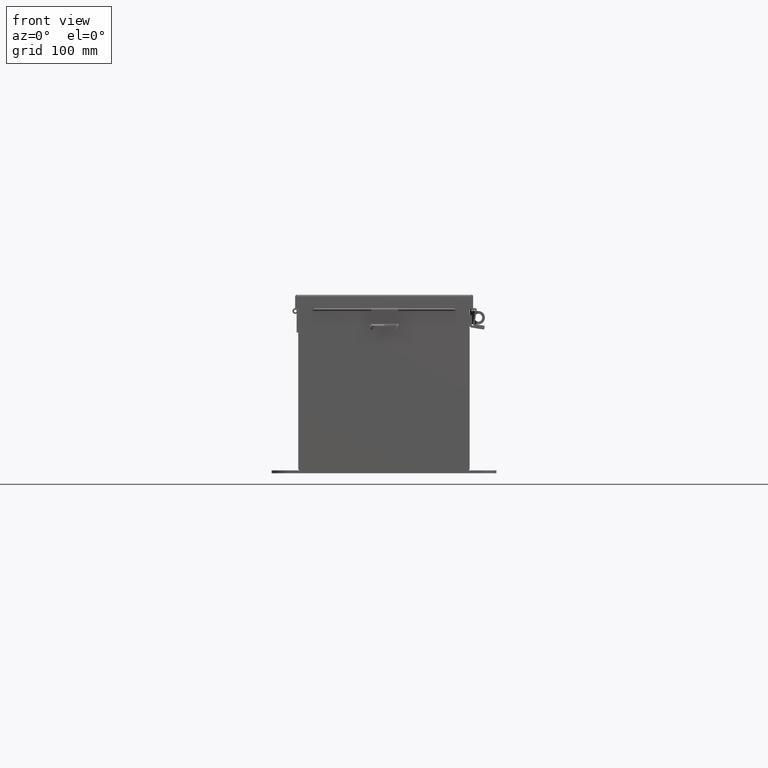
[diagram: clean part render]
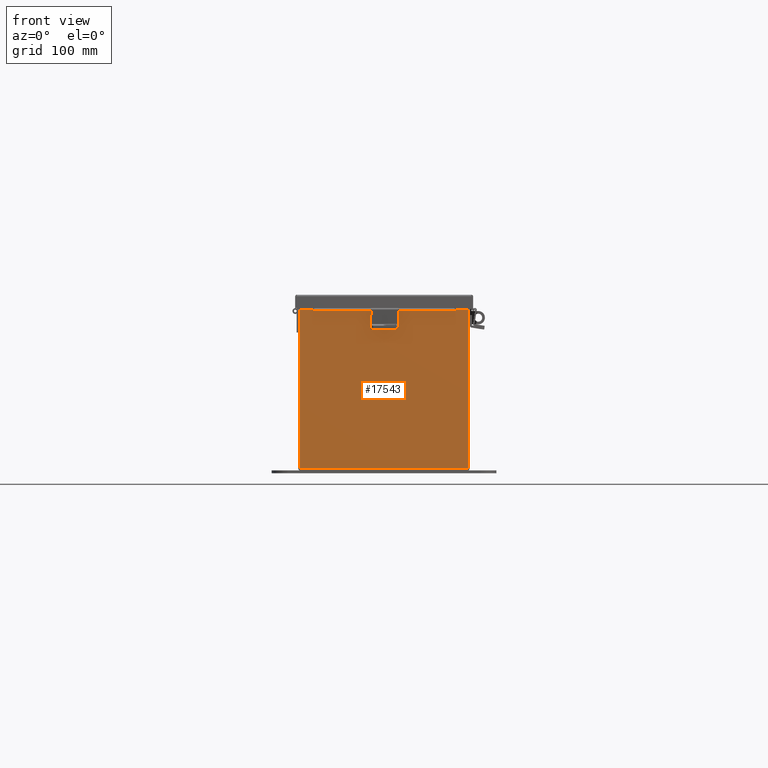
[diagram: same view with one face highlighted and labeled with its STEP entity id]
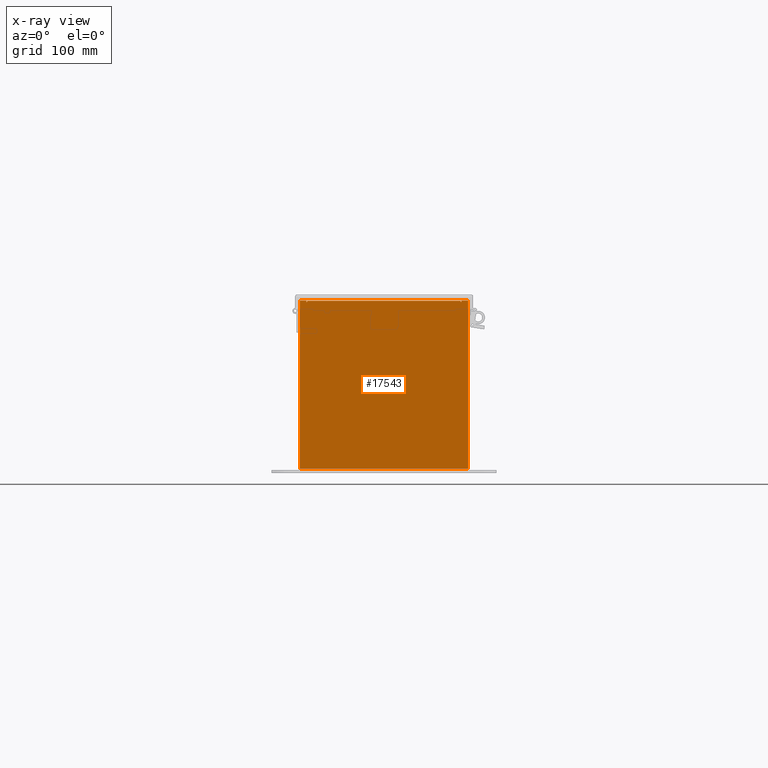
[diagram: x-ray of the same camera — body ghosted, the highlighted face saturated]
A machine part, front view. The second image highlights one B-rep face of the part: STEP entity #17543.
The next image is the same camera in x-ray: the body ghosted, the highlighted face saturated — about 0% of this face is hidden behind the body in this view.
In plain terms, the highlighted planar face has unit normal (-0, 1, -0).
Its self-contained STEP definition (entity closure, byte-faithful):
#135 = CARTESIAN_POINT ( 'NONE',  ( -3.582300000000006300, 0.0000000000000000000, 3.912299999999999200 ) ) ;
#342 = VERTEX_POINT ( 'NONE', #135 ) ;
#1256 = DIRECTION ( 'NONE',  ( -1.230560758958866800E-030, -1.000000000000000000, -0.0000000000000000000 ) ) ;
#1426 = ORIENTED_EDGE ( 'NONE', *, *, #8068, .F. ) ;
#1672 = CARTESIAN_POINT ( 'NONE',  ( 3.582300000000004000, 0.0000000000000000000, 3.874950000000000100 ) ) ;
#1737 = DIRECTION ( 'NONE',  ( -1.000000000000000000, -1.230560758958866800E-030, 0.0000000000000000000 ) ) ;
#2554 = ORIENTED_EDGE ( 'NONE', *, *, #7299, .F. ) ;
#2815 = CARTESIAN_POINT ( 'NONE',  ( -3.925300000000006200, 0.0000000000000000000, -3.925299999999999600 ) ) ;
#3119 = EDGE_LOOP ( 'NONE', ( #4937, #2554, #12483, #9161, #1426, #22534, #12182, #18869, #15432, #6416, #8979, #10210 ) ) ;
#3143 = AXIS2_PLACEMENT_3D ( 'NONE', #7418, #7077, #6846 ) ;
#3395 = DIRECTION ( 'NONE',  ( -2.170286390199978800E-014, -1.972152263052529500E-030, -1.000000000000000000 ) ) ;
#3675 = AXIS2_PLACEMENT_3D ( 'NONE', #24054, #23811, #23631 ) ;
#3700 = VECTOR ( 'NONE', #20880, 39.37007874015748100 ) ;
#3770 = LINE ( 'NONE', #18768, #3700 ) ;
#3938 = EDGE_CURVE ( 'NONE', #6623, #5978, #5420, .T. ) ;
#3963 = DIRECTION ( 'NONE',  ( 0.0000000000000000000, 0.0000000000000000000, -1.000000000000000000 ) ) ;
#4234 = EDGE_CURVE ( 'NONE', #7136, #13017, #3770, .T. ) ;
#4299 = CARTESIAN_POINT ( 'NONE',  ( -3.619649999999995100, 0.0000000000000000000, 3.874949999999997900 ) ) ;
#4584 = CARTESIAN_POINT ( 'NONE',  ( -3.925300000000006200, 0.0000000000000000000, 3.925299999999998200 ) ) ;
#4937 = ORIENTED_EDGE ( 'NONE', *, *, #6937, .F. ) ;
#5133 = VECTOR ( 'NONE', #21030, 39.37007874015748100 ) ;
#5180 = CARTESIAN_POINT ( 'NONE',  ( -3.619650000000006300, 0.0000000000000000000, 0.0000000000000000000 ) ) ;
#5220 = VERTEX_POINT ( 'NONE', #1672 ) ;
#5357 = CARTESIAN_POINT ( 'NONE',  ( -3.925300000000006200, 0.0000000000000000000, 3.925299999999998200 ) ) ;
#5383 = VECTOR ( 'NONE', #23956, 39.37007874015748100 ) ;
#5395 = CARTESIAN_POINT ( 'NONE',  ( -3.582300000000006300, 0.0000000000000000000, -1.092739197465705300E-014 ) ) ;
#5420 = LINE ( 'NONE', #4584, #5133 ) ;
#5535 = LINE ( 'NONE', #5357, #5383 ) ;
#5628 = DIRECTION ( 'NONE',  ( 0.0000000000000000000, 0.0000000000000000000, 1.000000000000000000 ) ) ;
#5967 = VERTEX_POINT ( 'NONE', #17701 ) ;
#5978 = VERTEX_POINT ( 'NONE', #13391 ) ;
#6416 = ORIENTED_EDGE ( 'NONE', *, *, #9592, .T. ) ;
#6539 = VECTOR ( 'NONE', #1737, 39.37007874015748100 ) ;
#6571 = LINE ( 'NONE', #2815, #6539 ) ;
#6623 = VERTEX_POINT ( 'NONE', #21631 ) ;
#6710 = LINE ( 'NONE', #14176, #6911 ) ;
#6846 = DIRECTION ( 'NONE',  ( 0.0000000000000000000, 0.0000000000000000000, -1.000000000000000000 ) ) ;
#6911 = VECTOR ( 'NONE', #20914, 39.37007874015748100 ) ;
#6937 = EDGE_CURVE ( 'NONE', #21715, #5978, #16747, .T. ) ;
#7077 = DIRECTION ( 'NONE',  ( 1.230560758958866800E-030, 1.000000000000000000, -0.0000000000000000000 ) ) ;
#7136 = VERTEX_POINT ( 'NONE', #17236 ) ;
#7165 = VERTEX_POINT ( 'NONE', #11224 ) ;
#7299 = EDGE_CURVE ( 'NONE', #12419, #21715, #15418, .T. ) ;
#7327 = CARTESIAN_POINT ( 'NONE',  ( 3.582299999999992900, 0.0000000000000000000, 3.912299999999999200 ) ) ;
#7418 = CARTESIAN_POINT ( 'NONE',  ( 3.600975000000004000, 0.0000000000000000000, 3.874950000000000100 ) ) ;
#7448 = EDGE_CURVE ( 'NONE', #342, #12419, #14774, .T. ) ;
#7626 = EDGE_CURVE ( 'NONE', #342, #24306, #14062, .T. ) ;
#8068 = EDGE_CURVE ( 'NONE', #5220, #24306, #12221, .T. ) ;
#8564 = EDGE_CURVE ( 'NONE', #7165, #5220, #10283, .T. ) ;
#8910 = EDGE_CURVE ( 'NONE', #7136, #7165, #9056, .T. ) ;
#8979 = ORIENTED_EDGE ( 'NONE', *, *, #9913, .T. ) ;
#9016 = VECTOR ( 'NONE', #3395, 39.37007874015748100 ) ;
#9056 = LINE ( 'NONE', #13266, #9016 ) ;
#9161 = ORIENTED_EDGE ( 'NONE', *, *, #7626, .T. ) ;
#9583 = EDGE_CURVE ( 'NONE', #13017, #5967, #6710, .T. ) ;
#9592 = EDGE_CURVE ( 'NONE', #5967, #14906, #6571, .T. ) ;
#9913 = EDGE_CURVE ( 'NONE', #14906, #6623, #5535, .T. ) ;
#10210 = ORIENTED_EDGE ( 'NONE', *, *, #3938, .T. ) ;
#10283 = CIRCLE ( 'NONE', #3143, 0.01867500000000003900 ) ;
#11224 = CARTESIAN_POINT ( 'NONE',  ( 3.619650000000004000, 0.0000000000000000000, 3.874950000000000100 ) ) ;
#12180 = VECTOR ( 'NONE', #13825, 39.37007874015748100 ) ;
#12182 = ORIENTED_EDGE ( 'NONE', *, *, #8910, .F. ) ;
#12221 = LINE ( 'NONE', #21180, #12180 ) ;
#12419 = VERTEX_POINT ( 'NONE', #22890 ) ;
#12483 = ORIENTED_EDGE ( 'NONE', *, *, #7448, .F. ) ;
#13017 = VERTEX_POINT ( 'NONE', #25328 ) ;
#13266 = CARTESIAN_POINT ( 'NONE',  ( 3.619649999999909000, 0.0000000000000000000, -7.867722221753078700E-014 ) ) ;
#13391 = CARTESIAN_POINT ( 'NONE',  ( -3.619650000000006300, 0.0000000000000000000, 3.925299999999999100 ) ) ;
#13825 = DIRECTION ( 'NONE',  ( 0.0000000000000000000, 0.0000000000000000000, 1.000000000000000000 ) ) ;
#14062 = LINE ( 'NONE', #25182, #14108 ) ;
#14108 = VECTOR ( 'NONE', #24422, 39.37007874015748100 ) ;
#14176 = CARTESIAN_POINT ( 'NONE',  ( 3.925299999999993400, 0.0000000000000000000, 3.925300000000000500 ) ) ;
#14724 = VECTOR ( 'NONE', #3963, 39.37007874015748100 ) ;
#14774 = LINE ( 'NONE', #5395, #14724 ) ;
#14906 = VERTEX_POINT ( 'NONE', #17066 ) ;
#15384 = DIRECTION ( 'NONE',  ( 0.0000000000000000000, 0.0000000000000000000, -1.000000000000000000 ) ) ;
#15418 = CIRCLE ( 'NONE', #3675, 0.01867500000000003900 ) ;
#15432 = ORIENTED_EDGE ( 'NONE', *, *, #9583, .T. ) ;
#16635 = VECTOR ( 'NONE', #5628, 39.37007874015748100 ) ;
#16747 = LINE ( 'NONE', #5180, #16635 ) ;
#17066 = CARTESIAN_POINT ( 'NONE',  ( -3.925300000000006200, 0.0000000000000000000, -3.925299999999999600 ) ) ;
#17236 = CARTESIAN_POINT ( 'NONE',  ( 3.619649999999994300, 0.0000000000000000000, 3.925300000000001300 ) ) ;
#17419 = PLANE ( 'NONE',  #25931 ) ;
#17543 = ADVANCED_FACE ( 'NONE', ( #18606 ), #17419, .F. ) ;
#17701 = CARTESIAN_POINT ( 'NONE',  ( 3.925299999999993400, 0.0000000000000000000, -3.925299999999999600 ) ) ;
#18606 = FACE_OUTER_BOUND ( 'NONE', #3119, .T. ) ;
#18768 = CARTESIAN_POINT ( 'NONE',  ( -3.925300000000006200, 0.0000000000000000000, 3.925299999999998200 ) ) ;
#18869 = ORIENTED_EDGE ( 'NONE', *, *, #4234, .T. ) ;
#20880 = DIRECTION ( 'NONE',  ( 1.000000000000000000, 1.230560758958866800E-030, 0.0000000000000000000 ) ) ;
#20914 = DIRECTION ( 'NONE',  ( 0.0000000000000000000, 0.0000000000000000000, -1.000000000000000000 ) ) ;
#21030 = DIRECTION ( 'NONE',  ( 1.000000000000000000, 1.230560758958866800E-030, 0.0000000000000000000 ) ) ;
#21180 = CARTESIAN_POINT ( 'NONE',  ( 3.582299999999992900, 0.0000000000000000000, 0.0000000000000000000 ) ) ;
#21631 = CARTESIAN_POINT ( 'NONE',  ( -3.925300000000006200, 0.0000000000000000000, 3.925299999999998200 ) ) ;
#21715 = VERTEX_POINT ( 'NONE', #4299 ) ;
#22534 = ORIENTED_EDGE ( 'NONE', *, *, #8564, .F. ) ;
#22890 = CARTESIAN_POINT ( 'NONE',  ( -3.582299999999995200, 0.0000000000000000000, 3.874949999999997900 ) ) ;
#23631 = DIRECTION ( 'NONE',  ( 0.0000000000000000000, 0.0000000000000000000, -1.000000000000000000 ) ) ;
#23811 = DIRECTION ( 'NONE',  ( 1.230560758958866800E-030, 1.000000000000000000, -0.0000000000000000000 ) ) ;
#23956 = DIRECTION ( 'NONE',  ( 0.0000000000000000000, 0.0000000000000000000, 1.000000000000000000 ) ) ;
#24054 = CARTESIAN_POINT ( 'NONE',  ( -3.600974999999995200, 0.0000000000000000000, 3.874949999999997900 ) ) ;
#24306 = VERTEX_POINT ( 'NONE', #7327 ) ;
#24422 = DIRECTION ( 'NONE',  ( 1.000000000000000000, 1.230560758958866800E-030, -0.0000000000000000000 ) ) ;
#25182 = CARTESIAN_POINT ( 'NONE',  ( -3.582300000000006300, 0.0000000000000000000, 3.912299999999999200 ) ) ;
#25328 = CARTESIAN_POINT ( 'NONE',  ( 3.925299999999993400, 0.0000000000000000000, 3.925300000000000500 ) ) ;
#25417 = CARTESIAN_POINT ( 'NONE',  ( 0.0000000000000000000, 0.0000000000000000000, 0.0000000000000000000 ) ) ;
#25931 = AXIS2_PLACEMENT_3D ( 'NONE', #25417, #1256, #15384 ) ;